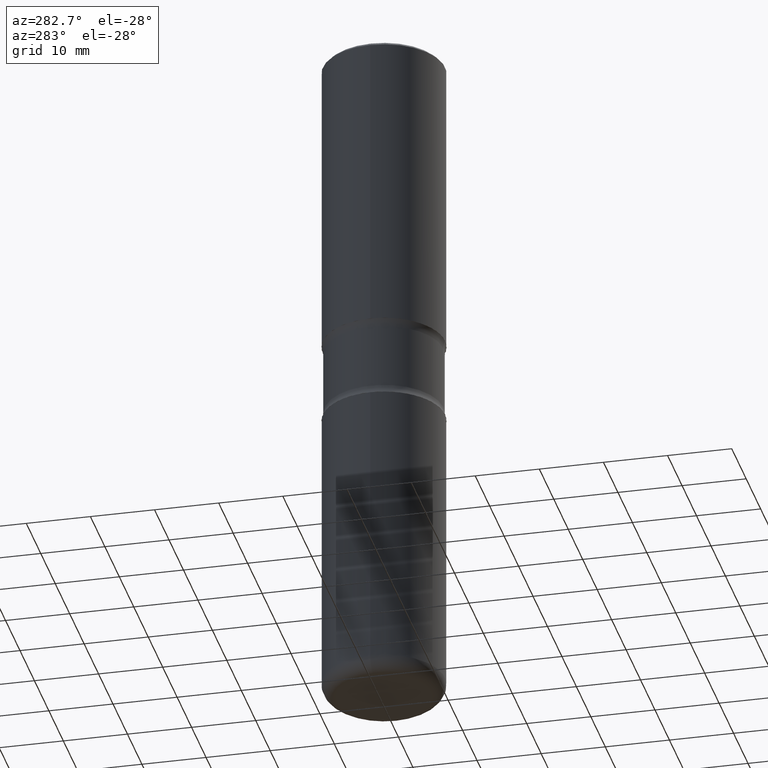
[diagram: clean part render]
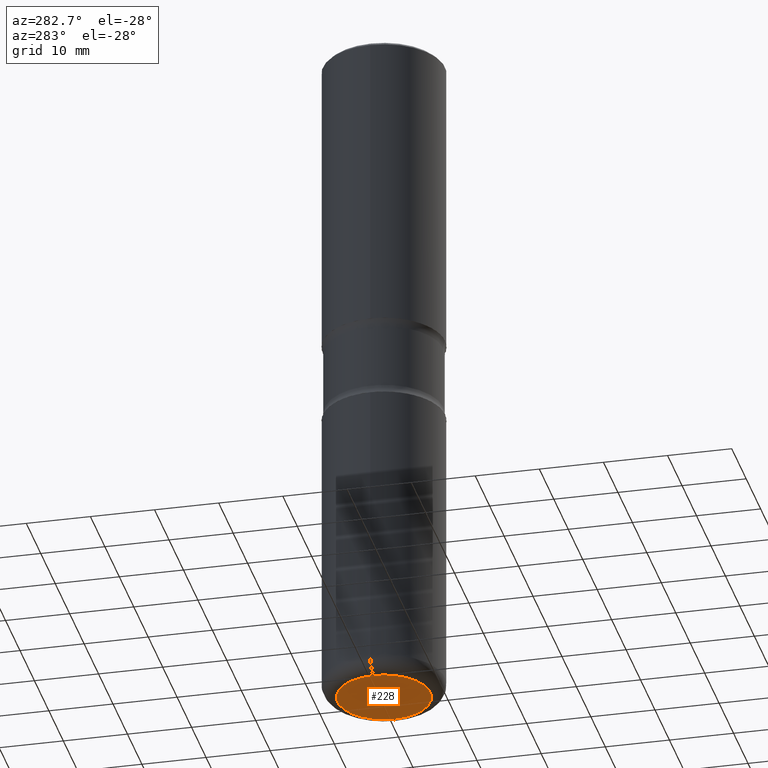
[diagram: same view with one face highlighted and labeled with its STEP entity id]
A machine part, auxiliary view. The second image highlights one B-rep face of the part: STEP entity #228.
In plain terms, the highlighted planar face has unit normal (0, -0, -1).
Its self-contained STEP definition (entity closure, byte-faithful):
#14 = PLANE ( 'NONE',  #72 ) ;
#25 = CARTESIAN_POINT ( 'NONE',  ( 1.039324242628683054E-28, -1.483879569008337040E-14, -4.250000000000000000 ) ) ;
#42 = CIRCLE ( 'NONE', #431, 0.2850000000000004197 ) ;
#51 = ORIENTED_EDGE ( 'NONE', *, *, #532, .F. ) ;
#72 = AXIS2_PLACEMENT_3D ( 'NONE', #495, #274, #225 ) ;
#101 = CARTESIAN_POINT ( 'NONE',  ( 0.2850000000000004197, -1.682894005322395705E-14, -4.250000000000000000 ) ) ;
#129 = DIRECTION ( 'NONE',  ( -2.445468806185136597E-29, 3.491481338843145583E-15, 1.000000000000000000 ) ) ;
#170 = DIRECTION ( 'NONE',  ( 1.000000000000000000, -6.982962677686264344E-15, 0.000000000000000000 ) ) ;
#205 = ORIENTED_EDGE ( 'NONE', *, *, #259, .F. ) ;
#222 = FACE_OUTER_BOUND ( 'NONE', #400, .T. ) ;
#225 = DIRECTION ( 'NONE',  ( -1.000000000000000000, 6.982962677686265922E-15, -4.876176775795935793E-29 ) ) ;
#228 = ADVANCED_FACE ( 'NONE', ( #222 ), #14, .T. ) ;
#231 = CIRCLE ( 'NONE', #484, 0.2850000000000004197 ) ;
#259 = EDGE_CURVE ( 'NONE', #496, #383, #42, .T. ) ;
#274 = DIRECTION ( 'NONE',  ( 2.438088387897960049E-29, -3.491481338843145188E-15, -1.000000000000000000 ) ) ;
#309 = CARTESIAN_POINT ( 'NONE',  ( -0.2850000000000004197, -1.233688800182709450E-14, -4.250000000000000000 ) ) ;
#328 = CARTESIAN_POINT ( 'NONE',  ( 1.039324242628683054E-28, -1.483879569008337040E-14, -4.250000000000000000 ) ) ;
#338 = DIRECTION ( 'NONE',  ( 1.000000000000000000, -6.982962677686264344E-15, 0.000000000000000000 ) ) ;
#383 = VERTEX_POINT ( 'NONE', #309 ) ;
#400 = EDGE_LOOP ( 'NONE', ( #205, #51 ) ) ;
#431 = AXIS2_PLACEMENT_3D ( 'NONE', #328, #129, #170 ) ;
#458 = DIRECTION ( 'NONE',  ( -2.445468806185136597E-29, 3.491481338843145583E-15, 1.000000000000000000 ) ) ;
#484 = AXIS2_PLACEMENT_3D ( 'NONE', #25, #458, #338 ) ;
#495 = CARTESIAN_POINT ( 'NONE',  ( 1.039324242628683054E-28, -1.483879569008337040E-14, -4.250000000000000000 ) ) ;
#496 = VERTEX_POINT ( 'NONE', #101 ) ;
#532 = EDGE_CURVE ( 'NONE', #383, #496, #231, .T. ) ;